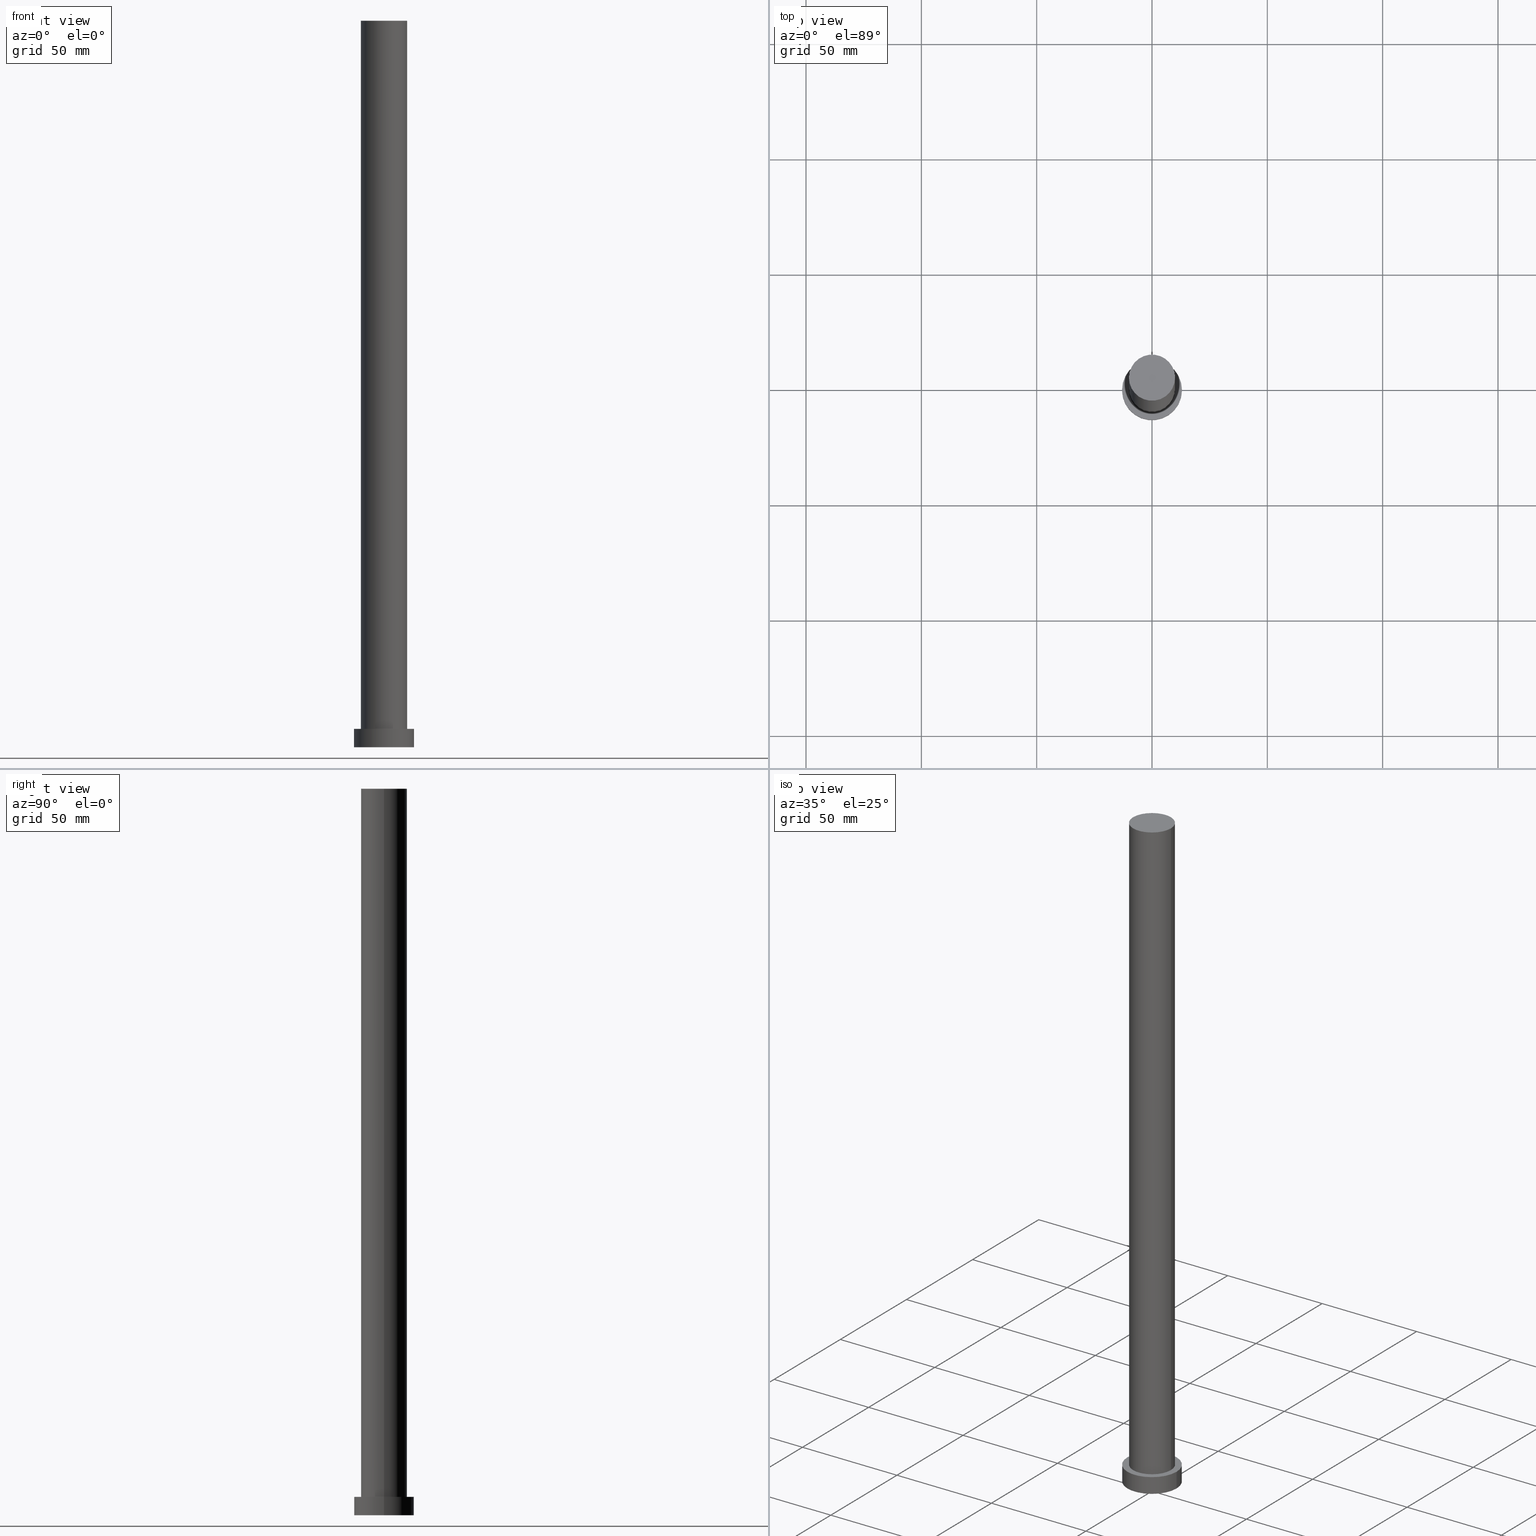
[diagram: canonical four-view strip — front | top / right | iso, engineering-drawing reading convention]
A machine part, canonical four-view strip (front | top / right | iso — engineering-drawing reading convention). The complete STEP part file that produces these views, byte-faithful:
ISO-10303-21;
HEADER;
FILE_DESCRIPTION (( 'STEP AP203' ),
    '1' );
FILE_NAME ('c9ef.STEP',
    '2023-02-13T07:33:47',
    ( '' ),
    ( '' ),
    'SwSTEP 2.0',
    'SolidWorks 2019',
    '' );
FILE_SCHEMA (( 'CONFIG_CONTROL_DESIGN' ));
ENDSEC;

DATA;
#1 = ORIENTED_EDGE ( 'NONE', *, *, #124, .F. ) ;
#2 = PERSON_AND_ORGANIZATION ( #245, #155 ) ;
#3 = VERTEX_POINT ( 'NONE', #6 ) ;
#4 = CARTESIAN_POINT ( 'NONE',  ( -13.00000000000000178, 0.000000000000000000, 8.000000000000000000 ) ) ;
#5 = AXIS2_PLACEMENT_3D ( 'NONE', #115, #198, #86 ) ;
#6 = CARTESIAN_POINT ( 'NONE',  ( 10.00000000000000000, 1.224646799147353256E-15, 8.000000000000000000 ) ) ;
#7 = CARTESIAN_POINT ( 'NONE',  ( -13.00000000000000178, 0.000000000000000000, 8.000000000000000000 ) ) ;
#8 = PERSON_AND_ORGANIZATION_ROLE ( 'design_owner' ) ;
#9 = COORDINATED_UNIVERSAL_TIME_OFFSET ( 1, 0, .AHEAD. ) ;
#10 = CC_DESIGN_DATE_AND_TIME_ASSIGNMENT ( #65, #15, ( #196 ) ) ;
#11 = ORIENTED_EDGE ( 'NONE', *, *, #187, .T. ) ;
#12 = VECTOR ( 'NONE', #186, 1000.000000000000000 ) ;
#13 = APPROVAL_ROLE ( '' ) ;
#14 = EDGE_CURVE ( 'NONE', #43, #228, #47, .T. ) ;
#15 = DATE_TIME_ROLE ( 'creation_date' ) ;
#16 = DIRECTION ( 'NONE',  ( 1.000000000000000000, 0.000000000000000000, 0.000000000000000000 ) ) ;
#17 = CARTESIAN_POINT ( 'NONE',  ( 0.000000000000000000, 0.000000000000000000, 8.000000000000000000 ) ) ;
#18 = AXIS2_PLACEMENT_3D ( 'NONE', #232, #175, #233 ) ;
#19 = APPROVAL_STATUS ( 'not_yet_approved' ) ;
#20 = APPROVAL_DATE_TIME ( #118, #229 ) ;
#21 = VECTOR ( 'NONE', #99, 1000.000000000000000 ) ;
#22 = VERTEX_POINT ( 'NONE', #171 ) ;
#23 = PERSON_AND_ORGANIZATION ( #245, #155 ) ;
#24 = ORIENTED_EDGE ( 'NONE', *, *, #14, .F. ) ;
#25 = FACE_BOUND ( 'NONE', #59, .T. ) ;
#26 = DIRECTION ( 'NONE',  ( 0.000000000000000000, 0.000000000000000000, 1.000000000000000000 ) ) ;
#27 = ORIENTED_EDGE ( 'NONE', *, *, #14, .T. ) ;
#28 = CARTESIAN_POINT ( 'NONE',  ( 10.00000000000000000, 1.224646799147353256E-15, 315.0000000000000000 ) ) ;
#29 = APPROVAL_PERSON_ORGANIZATION ( #23, #229, #145 ) ;
#30 = CC_DESIGN_PERSON_AND_ORGANIZATION_ASSIGNMENT ( #188, #8, ( #33 ) ) ;
#31 = PERSON_AND_ORGANIZATION ( #245, #155 ) ;
#32 = CC_DESIGN_PERSON_AND_ORGANIZATION_ASSIGNMENT ( #241, #148, ( #191 ) ) ;
#33 = PRODUCT ( 'c9ef', 'c9ef', '', ( #55 ) ) ;
#34 = AXIS2_PLACEMENT_3D ( 'NONE', #178, #179, #69 ) ;
#35 = DATE_AND_TIME ( #45, #54 ) ;
#36 = AXIS2_PLACEMENT_3D ( 'NONE', #177, #176, #252 ) ;
#37 = FACE_OUTER_BOUND ( 'NONE', #41, .T. ) ;
#38 = AXIS2_PLACEMENT_3D ( 'NONE', #92, #138, #221 ) ;
#39 = COORDINATED_UNIVERSAL_TIME_OFFSET ( 1, 0, .AHEAD. ) ;
#40 = AXIS2_PLACEMENT_3D ( 'NONE', #203, #102, #205 ) ;
#41 = EDGE_LOOP ( 'NONE', ( #146, #108 ) ) ;
#42 = SECURITY_CLASSIFICATION ( '', '', #75 ) ;
#43 = VERTEX_POINT ( 'NONE', #120 ) ;
#44 = ADVANCED_FACE ( 'NONE', ( #114 ), #231, .T. ) ;
#45 = CALENDAR_DATE ( 2023, 13, 2 ) ;
#46 = PERSON_AND_ORGANIZATION_ROLE ( 'creator' ) ;
#47 = CIRCLE ( 'NONE', #194, 10.00000000000000000 ) ;
#48 = COORDINATED_UNIVERSAL_TIME_OFFSET ( 1, 0, .AHEAD. ) ;
#49 = VECTOR ( 'NONE', #58, 1000.000000000000000 ) ;
#50 = DIRECTION ( 'NONE',  ( 1.000000000000000000, 0.000000000000000000, 0.000000000000000000 ) ) ;
#51 = ADVANCED_FACE ( 'NONE', ( #116 ), #200, .T. ) ;
#52 = CARTESIAN_POINT ( 'NONE',  ( 0.000000000000000000, 0.000000000000000000, 315.0000000000000000 ) ) ;
#53 = DIRECTION ( 'NONE',  ( 1.000000000000000000, 0.000000000000000000, 0.000000000000000000 ) ) ;
#54 = LOCAL_TIME ( 8, 33, 47.00000000000000000, #209 ) ;
#55 = MECHANICAL_CONTEXT ( 'NONE', #253, 'mechanical' ) ;
#56 = ORIENTED_EDGE ( 'NONE', *, *, #80, .F. ) ;
#57 = DATE_AND_TIME ( #161, #131 ) ;
#58 = DIRECTION ( 'NONE',  ( -0.000000000000000000, -0.000000000000000000, -1.000000000000000000 ) ) ;
#59 = EDGE_LOOP ( 'NONE', ( #1, #238 ) ) ;
#60 = APPLICATION_PROTOCOL_DEFINITION ( 'international standard', 'config_control_design', 1994, #249 ) ;
#61 = DIRECTION ( 'NONE',  ( 0.000000000000000000, 0.000000000000000000, 1.000000000000000000 ) ) ;
#62 = AXIS2_PLACEMENT_3D ( 'NONE', #150, #61, #195 ) ;
#63 = CARTESIAN_POINT ( 'NONE',  ( 0.000000000000000000, 0.000000000000000000, 315.0000000000000000 ) ) ;
#64 = APPROVAL ( #127, 'NEUR�EN�' ) ;
#65 = DATE_AND_TIME ( #130, #73 ) ;
#66 = DIRECTION ( 'NONE',  ( 0.000000000000000000, 0.000000000000000000, 1.000000000000000000 ) ) ;
#67 = LOCAL_TIME ( 8, 33, 47.00000000000000000, #9 ) ;
#68 = ADVANCED_FACE ( 'NONE', ( #94 ), #234, .T. ) ;
#69 = DIRECTION ( 'NONE',  ( -1.000000000000000000, 0.000000000000000000, 0.000000000000000000 ) ) ;
#70 = UNCERTAINTY_MEASURE_WITH_UNIT (LENGTH_MEASURE( 1.000000000000000082E-05 ), #112, 'distance_accuracy_value', 'NONE');
#71 = PERSON_AND_ORGANIZATION_ROLE ( 'classification_officer' ) ;
#72 = COORDINATED_UNIVERSAL_TIME_OFFSET ( 1, 0, .AHEAD. ) ;
#73 = LOCAL_TIME ( 8, 33, 47.00000000000000000, #48 ) ;
#74 = CC_DESIGN_DATE_AND_TIME_ASSIGNMENT ( #57, #159, ( #42 ) ) ;
#75 = SECURITY_CLASSIFICATION_LEVEL ( 'unclassified' ) ;
#76 = ORIENTED_EDGE ( 'NONE', *, *, #104, .T. ) ;
#77 = DIRECTION ( 'NONE',  ( -0.000000000000000000, -0.000000000000000000, -1.000000000000000000 ) ) ;
#78 = ADVANCED_FACE ( 'NONE', ( #136 ), #218, .T. ) ;
#79 = ORIENTED_EDGE ( 'NONE', *, *, #216, .F. ) ;
#80 = EDGE_CURVE ( 'NONE', #228, #243, #255, .T. ) ;
#81 = CARTESIAN_POINT ( 'NONE',  ( 0.000000000000000000, 0.000000000000000000, 8.000000000000000000 ) ) ;
#82 = ADVANCED_FACE ( 'NONE', ( #25, #105 ), #181, .T. ) ;
#83 = FACE_OUTER_BOUND ( 'NONE', #122, .T. ) ;
#84 = DIRECTION ( 'NONE',  ( -1.000000000000000000, 0.000000000000000000, 0.000000000000000000 ) ) ;
#85 = ADVANCED_BREP_SHAPE_REPRESENTATION ( 'c9ef', ( #250, #40 ), #251 ) ;
#86 = DIRECTION ( 'NONE',  ( 1.000000000000000000, 0.000000000000000000, 0.000000000000000000 ) ) ;
#87 = DIRECTION ( 'NONE',  ( -1.000000000000000000, 0.000000000000000000, 0.000000000000000000 ) ) ;
#88 = ADVANCED_FACE ( 'NONE', ( #83 ), #172, .T. ) ;
#89 = EDGE_LOOP ( 'NONE', ( #24, #235, #180, #56 ) ) ;
#90 = AXIS2_PLACEMENT_3D ( 'NONE', #151, #66, #16 ) ;
#91 = CIRCLE ( 'NONE', #213, 10.00000000000000000 ) ;
#92 = CARTESIAN_POINT ( 'NONE',  ( 0.000000000000000000, 0.000000000000000000, 8.000000000000000000 ) ) ;
#93 = CALENDAR_DATE ( 2023, 13, 2 ) ;
#94 = FACE_OUTER_BOUND ( 'NONE', #225, .T. ) ;
#95 = PLANE ( 'NONE',  #18 ) ;
#96 = CC_DESIGN_PERSON_AND_ORGANIZATION_ASSIGNMENT ( #2, #143, ( #191 ) ) ;
#97 = CIRCLE ( 'NONE', #90, 13.00000000000000178 ) ;
#98 = CC_DESIGN_APPROVAL ( #141, ( #191 ) ) ;
#99 = DIRECTION ( 'NONE',  ( -0.000000000000000000, -0.000000000000000000, -1.000000000000000000 ) ) ;
#100 = EDGE_LOOP ( 'NONE', ( #79, #147, #106, #123 ) ) ;
#101 = CARTESIAN_POINT ( 'NONE',  ( 0.000000000000000000, 0.000000000000000000, 315.0000000000000000 ) ) ;
#102 = DIRECTION ( 'NONE',  ( 0.000000000000000000, 0.000000000000000000, 1.000000000000000000 ) ) ;
#103 = ORIENTED_EDGE ( 'NONE', *, *, #124, .T. ) ;
#104 = EDGE_CURVE ( 'NONE', #240, #164, #97, .T. ) ;
#105 = FACE_OUTER_BOUND ( 'NONE', #144, .T. ) ;
#106 = ORIENTED_EDGE ( 'NONE', *, *, #247, .T. ) ;
#107 = VECTOR ( 'NONE', #77, 1000.000000000000000 ) ;
#108 = ORIENTED_EDGE ( 'NONE', *, *, #187, .F. ) ;
#109 = APPROVAL_ROLE ( '' ) ;
#110 = LINE ( 'NONE', #163, #49 ) ;
#111 = CC_DESIGN_PERSON_AND_ORGANIZATION_ASSIGNMENT ( #182, #71, ( #42 ) ) ;
#112 =( LENGTH_UNIT ( ) NAMED_UNIT ( * ) SI_UNIT ( .MILLI., .METRE. ) );
#113 = PRODUCT_DEFINITION_SHAPE ( 'NONE', 'NONE',  #196 ) ;
#114 = FACE_OUTER_BOUND ( 'NONE', #202, .T. ) ;
#115 = CARTESIAN_POINT ( 'NONE',  ( 0.000000000000000000, 0.000000000000000000, 0.000000000000000000 ) ) ;
#116 = FACE_OUTER_BOUND ( 'NONE', #89, .T. ) ;
#117 = CIRCLE ( 'NONE', #5, 13.00000000000000178 ) ;
#118 = DATE_AND_TIME ( #93, #170 ) ;
#119 = EDGE_CURVE ( 'NONE', #164, #240, #134, .T. ) ;
#120 = CARTESIAN_POINT ( 'NONE',  ( 10.00000000000000000, 1.224646799147353256E-15, 315.0000000000000000 ) ) ;
#121 = AXIS2_PLACEMENT_3D ( 'NONE', #52, #173, #156 ) ;
#122 = EDGE_LOOP ( 'NONE', ( #185, #206, #236, #103 ) ) ;
#123 = ORIENTED_EDGE ( 'NONE', *, *, #129, .T. ) ;
#124 = EDGE_CURVE ( 'NONE', #243, #3, #230, .T. ) ;
#125 = SHAPE_DEFINITION_REPRESENTATION ( #113, #85 ) ;
#126 = ORIENTED_EDGE ( 'NONE', *, *, #119, .T. ) ;
#127 = APPROVAL_STATUS ( 'not_yet_approved' ) ;
#128 = DIRECTION ( 'NONE',  ( -1.000000000000000000, 0.000000000000000000, 0.000000000000000000 ) ) ;
#129 = EDGE_CURVE ( 'NONE', #204, #22, #117, .T. ) ;
#130 = CALENDAR_DATE ( 2023, 13, 2 ) ;
#131 = LOCAL_TIME ( 8, 33, 47.00000000000000000, #72 ) ;
#132 = DIRECTION ( 'NONE',  ( 0.000000000000000000, 0.000000000000000000, 1.000000000000000000 ) ) ;
#133 =( NAMED_UNIT ( * ) SI_UNIT ( $, .STERADIAN. ) SOLID_ANGLE_UNIT ( ) );
#134 = CIRCLE ( 'NONE', #167, 13.00000000000000178 ) ;
#135 = CC_DESIGN_APPROVAL ( #64, ( #196 ) ) ;
#136 = FACE_OUTER_BOUND ( 'NONE', #100, .T. ) ;
#137 = CARTESIAN_POINT ( 'NONE',  ( 13.00000000000000178, 1.592040838891559293E-15, 8.000000000000000000 ) ) ;
#138 = DIRECTION ( 'NONE',  ( 0.000000000000000000, 0.000000000000000000, 1.000000000000000000 ) ) ;
#139 = APPROVAL_PERSON_ORGANIZATION ( #149, #64, #109 ) ;
#140 = CARTESIAN_POINT ( 'NONE',  ( 0.000000000000000000, 0.000000000000000000, 8.000000000000000000 ) ) ;
#141 = APPROVAL ( #212, 'NEUR�EN�' ) ;
#142 = APPROVAL_DATE_TIME ( #35, #141 ) ;
#143 = PERSON_AND_ORGANIZATION_ROLE ( 'design_supplier' ) ;
#144 = EDGE_LOOP ( 'NONE', ( #76, #126 ) ) ;
#145 = APPROVAL_ROLE ( '' ) ;
#146 = ORIENTED_EDGE ( 'NONE', *, *, #129, .F. ) ;
#147 = ORIENTED_EDGE ( 'NONE', *, *, #104, .F. ) ;
#148 = PERSON_AND_ORGANIZATION_ROLE ( 'creator' ) ;
#149 = PERSON_AND_ORGANIZATION ( #245, #155 ) ;
#150 = CARTESIAN_POINT ( 'NONE',  ( 0.000000000000000000, 0.000000000000000000, 8.000000000000000000 ) ) ;
#151 = CARTESIAN_POINT ( 'NONE',  ( 0.000000000000000000, 0.000000000000000000, 8.000000000000000000 ) ) ;
#152 = CIRCLE ( 'NONE', #36, 13.00000000000000178 ) ;
#153 = PERSON_AND_ORGANIZATION ( #245, #155 ) ;
#154 = CIRCLE ( 'NONE', #168, 10.00000000000000000 ) ;
#155 = ORGANIZATION ( 'NEUR�EN�', 'NEUR�EN�', '' ) ;
#156 = DIRECTION ( 'NONE',  ( 1.000000000000000000, 0.000000000000000000, -0.000000000000000000 ) ) ;
#157 = DIRECTION ( 'NONE',  ( 0.000000000000000000, 0.000000000000000000, 1.000000000000000000 ) ) ;
#158 = CLOSED_SHELL ( 'NONE', ( #51, #44, #78, #82, #174, #88, #68 ) ) ;
#159 = DATE_TIME_ROLE ( 'classification_date' ) ;
#160 = ORIENTED_EDGE ( 'NONE', *, *, #247, .F. ) ;
#161 = CALENDAR_DATE ( 2023, 13, 2 ) ;
#162 = EDGE_CURVE ( 'NONE', #3, #243, #91, .T. ) ;
#163 = CARTESIAN_POINT ( 'NONE',  ( 13.00000000000000178, 1.592040838891559293E-15, 8.000000000000000000 ) ) ;
#164 = VERTEX_POINT ( 'NONE', #137 ) ;
#165 = CC_DESIGN_APPROVAL ( #229, ( #42 ) ) ;
#166 = ORIENTED_EDGE ( 'NONE', *, *, #207, .T. ) ;
#167 = AXIS2_PLACEMENT_3D ( 'NONE', #81, #157, #53 ) ;
#168 = AXIS2_PLACEMENT_3D ( 'NONE', #101, #26, #183 ) ;
#169 = CARTESIAN_POINT ( 'NONE',  ( -13.00000000000000178, 0.000000000000000000, 0.000000000000000000 ) ) ;
#170 = LOCAL_TIME ( 8, 33, 47.00000000000000000, #39 ) ;
#171 = CARTESIAN_POINT ( 'NONE',  ( 13.00000000000000178, 1.592040838891559293E-15, 0.000000000000000000 ) ) ;
#172 = CYLINDRICAL_SURFACE ( 'NONE', #244, 10.00000000000000000 ) ;
#173 = DIRECTION ( 'NONE',  ( 0.000000000000000000, 0.000000000000000000, 1.000000000000000000 ) ) ;
#174 = ADVANCED_FACE ( 'NONE', ( #37 ), #95, .F. ) ;
#175 = DIRECTION ( 'NONE',  ( 0.000000000000000000, 0.000000000000000000, 1.000000000000000000 ) ) ;
#176 = DIRECTION ( 'NONE',  ( 0.000000000000000000, 0.000000000000000000, 1.000000000000000000 ) ) ;
#177 = CARTESIAN_POINT ( 'NONE',  ( 0.000000000000000000, 0.000000000000000000, 0.000000000000000000 ) ) ;
#178 = CARTESIAN_POINT ( 'NONE',  ( 0.000000000000000000, 0.000000000000000000, 315.0000000000000000 ) ) ;
#179 = DIRECTION ( 'NONE',  ( -0.000000000000000000, -0.000000000000000000, -1.000000000000000000 ) ) ;
#180 = ORIENTED_EDGE ( 'NONE', *, *, #162, .T. ) ;
#181 = PLANE ( 'NONE',  #62 ) ;
#182 = PERSON_AND_ORGANIZATION ( #245, #155 ) ;
#183 = DIRECTION ( 'NONE',  ( 1.000000000000000000, 0.000000000000000000, 0.000000000000000000 ) ) ;
#184 = APPLICATION_PROTOCOL_DEFINITION ( 'international standard', 'config_control_design', 1994, #253 ) ;
#185 = ORIENTED_EDGE ( 'NONE', *, *, #254, .F. ) ;
#186 = DIRECTION ( 'NONE',  ( -0.000000000000000000, -0.000000000000000000, -1.000000000000000000 ) ) ;
#187 = EDGE_CURVE ( 'NONE', #22, #204, #152, .T. ) ;
#188 = PERSON_AND_ORGANIZATION ( #245, #155 ) ;
#189 = ORIENTED_EDGE ( 'NONE', *, *, #119, .F. ) ;
#190 = CARTESIAN_POINT ( 'NONE',  ( -10.00000000000000000, 0.000000000000000000, 315.0000000000000000 ) ) ;
#191 = PRODUCT_DEFINITION_FORMATION_WITH_SPECIFIED_SOURCE ( 'LIBOVOLN�', '', #33, .NOT_KNOWN. ) ;
#192 =( NAMED_UNIT ( * ) PLANE_ANGLE_UNIT ( ) SI_UNIT ( $, .RADIAN. ) );
#193 = DIRECTION ( 'NONE',  ( 1.000000000000000000, 0.000000000000000000, 0.000000000000000000 ) ) ;
#194 = AXIS2_PLACEMENT_3D ( 'NONE', #215, #132, #193 ) ;
#195 = DIRECTION ( 'NONE',  ( 1.000000000000000000, 0.000000000000000000, -0.000000000000000000 ) ) ;
#196 = PRODUCT_DEFINITION ( 'NEZN�M�', '', #191, #220 ) ;
#197 = DIRECTION ( 'NONE',  ( -0.000000000000000000, -0.000000000000000000, -1.000000000000000000 ) ) ;
#198 = DIRECTION ( 'NONE',  ( 0.000000000000000000, 0.000000000000000000, 1.000000000000000000 ) ) ;
#199 = CARTESIAN_POINT ( 'NONE',  ( 0.000000000000000000, 0.000000000000000000, 8.000000000000000000 ) ) ;
#200 = CYLINDRICAL_SURFACE ( 'NONE', #34, 10.00000000000000000 ) ;
#201 = CARTESIAN_POINT ( 'NONE',  ( -10.00000000000000000, 0.000000000000000000, 315.0000000000000000 ) ) ;
#202 = EDGE_LOOP ( 'NONE', ( #189, #227, #11, #160 ) ) ;
#203 = CARTESIAN_POINT ( 'NONE',  ( 0.000000000000000000, 0.000000000000000000, 0.000000000000000000 ) ) ;
#204 = VERTEX_POINT ( 'NONE', #169 ) ;
#205 = DIRECTION ( 'NONE',  ( 1.000000000000000000, 0.000000000000000000, 0.000000000000000000 ) ) ;
#206 = ORIENTED_EDGE ( 'NONE', *, *, #207, .F. ) ;
#207 = EDGE_CURVE ( 'NONE', #228, #43, #154, .T. ) ;
#208 = LINE ( 'NONE', #28, #12 ) ;
#209 = COORDINATED_UNIVERSAL_TIME_OFFSET ( 1, 0, .AHEAD. ) ;
#210 = DATE_AND_TIME ( #239, #67 ) ;
#211 = AXIS2_PLACEMENT_3D ( 'NONE', #17, #219, #84 ) ;
#212 = APPROVAL_STATUS ( 'not_yet_approved' ) ;
#213 = AXIS2_PLACEMENT_3D ( 'NONE', #140, #223, #50 ) ;
#214 = DIRECTION ( 'NONE',  ( -0.000000000000000000, -0.000000000000000000, -1.000000000000000000 ) ) ;
#215 = CARTESIAN_POINT ( 'NONE',  ( 0.000000000000000000, 0.000000000000000000, 315.0000000000000000 ) ) ;
#216 = EDGE_CURVE ( 'NONE', #164, #22, #110, .T. ) ;
#217 = AXIS2_PLACEMENT_3D ( 'NONE', #199, #197, #87 ) ;
#218 = CYLINDRICAL_SURFACE ( 'NONE', #217, 13.00000000000000178 ) ;
#219 = DIRECTION ( 'NONE',  ( -0.000000000000000000, -0.000000000000000000, -1.000000000000000000 ) ) ;
#220 = DESIGN_CONTEXT ( 'detailed design', #249, 'design' ) ;
#221 = DIRECTION ( 'NONE',  ( 1.000000000000000000, 0.000000000000000000, 0.000000000000000000 ) ) ;
#222 = APPROVAL_PERSON_ORGANIZATION ( #153, #141, #13 ) ;
#223 = DIRECTION ( 'NONE',  ( 0.000000000000000000, 0.000000000000000000, 1.000000000000000000 ) ) ;
#224 = PRODUCT_RELATED_PRODUCT_CATEGORY ( 'detail', '', ( #33 ) ) ;
#225 = EDGE_LOOP ( 'NONE', ( #166, #27 ) ) ;
#226 = CARTESIAN_POINT ( 'NONE',  ( -10.00000000000000000, 0.000000000000000000, 8.000000000000000000 ) ) ;
#227 = ORIENTED_EDGE ( 'NONE', *, *, #216, .T. ) ;
#228 = VERTEX_POINT ( 'NONE', #190 ) ;
#229 = APPROVAL ( #19, 'NEUR�EN�' ) ;
#230 = CIRCLE ( 'NONE', #38, 10.00000000000000000 ) ;
#231 = CYLINDRICAL_SURFACE ( 'NONE', #211, 13.00000000000000178 ) ;
#232 = CARTESIAN_POINT ( 'NONE',  ( 0.000000000000000000, 0.000000000000000000, 0.000000000000000000 ) ) ;
#233 = DIRECTION ( 'NONE',  ( 1.000000000000000000, 0.000000000000000000, -0.000000000000000000 ) ) ;
#234 = PLANE ( 'NONE',  #121 ) ;
#235 = ORIENTED_EDGE ( 'NONE', *, *, #254, .T. ) ;
#236 = ORIENTED_EDGE ( 'NONE', *, *, #80, .T. ) ;
#237 = CC_DESIGN_PERSON_AND_ORGANIZATION_ASSIGNMENT ( #31, #46, ( #196 ) ) ;
#238 = ORIENTED_EDGE ( 'NONE', *, *, #162, .F. ) ;
#239 = CALENDAR_DATE ( 2023, 13, 2 ) ;
#240 = VERTEX_POINT ( 'NONE', #4 ) ;
#241 = PERSON_AND_ORGANIZATION ( #245, #155 ) ;
#242 = LINE ( 'NONE', #7, #107 ) ;
#243 = VERTEX_POINT ( 'NONE', #226 ) ;
#244 = AXIS2_PLACEMENT_3D ( 'NONE', #63, #214, #128 ) ;
#245 = PERSON ( 'NEUR�EN�', 'NEUR�EN�', 'NEUR�EN�', ('NEUR�EN�'), ('NEUR�EN�'), ('NEUR�EN�') ) ;
#246 = APPROVAL_DATE_TIME ( #210, #64 ) ;
#247 = EDGE_CURVE ( 'NONE', #240, #204, #242, .T. ) ;
#248 = CC_DESIGN_SECURITY_CLASSIFICATION ( #42, ( #191 ) ) ;
#249 = APPLICATION_CONTEXT ( 'configuration controlled 3d designs of mechanical parts and assemblies' ) ;
#250 = MANIFOLD_SOLID_BREP ( 'P�idat vysunut�m3', #158 ) ;
#251 =( GEOMETRIC_REPRESENTATION_CONTEXT ( 3 ) GLOBAL_UNCERTAINTY_ASSIGNED_CONTEXT ( ( #70 ) ) GLOBAL_UNIT_ASSIGNED_CONTEXT ( ( #112, #192, #133 ) ) REPRESENTATION_CONTEXT ( 'NONE', 'WORKASPACE' ) );
#252 = DIRECTION ( 'NONE',  ( 1.000000000000000000, 0.000000000000000000, 0.000000000000000000 ) ) ;
#253 = APPLICATION_CONTEXT ( 'configuration controlled 3d designs of mechanical parts and assemblies' ) ;
#254 = EDGE_CURVE ( 'NONE', #43, #3, #208, .T. ) ;
#255 = LINE ( 'NONE', #201, #21 ) ;
ENDSEC;
END-ISO-10303-21;
